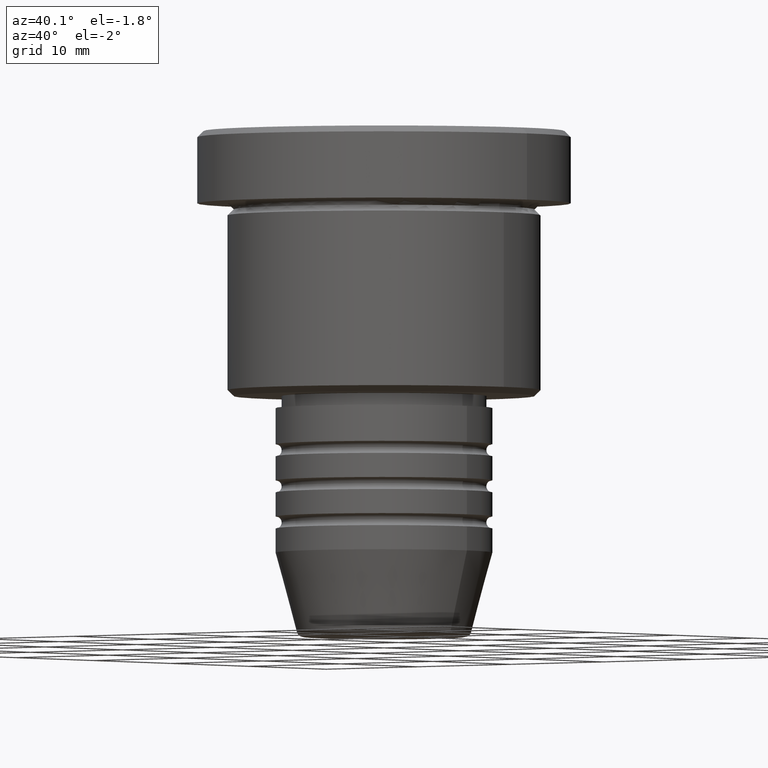
[diagram: clean part render]
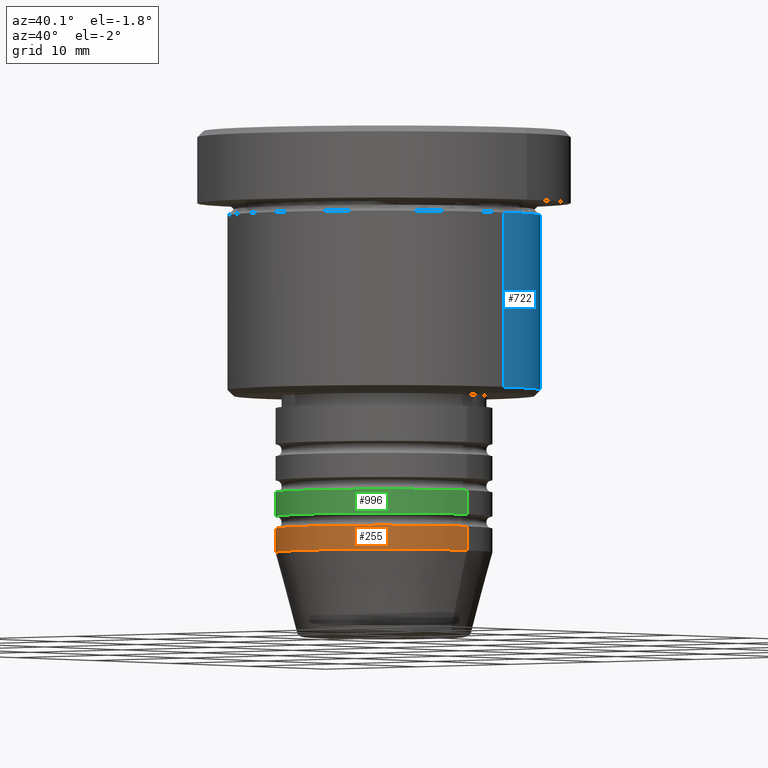
[diagram: same view with three faces highlighted in distinct colors, each labeled with its STEP entity id]
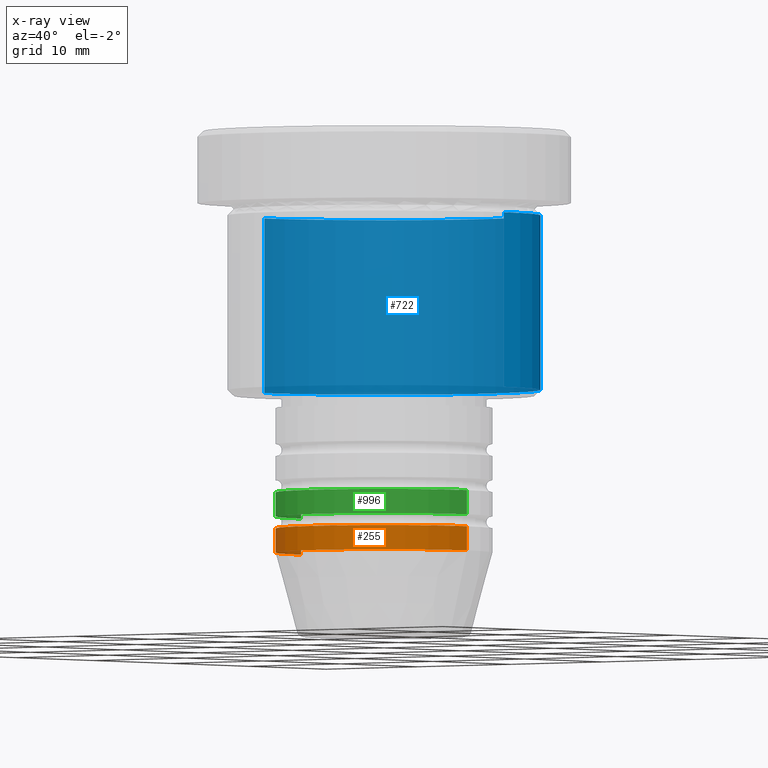
[diagram: x-ray of the same camera — body ghosted, the three highlighted faces saturated]
A machine part, auxiliary view with three faces highlighted in distinct colors.
The next image is the same camera in x-ray (body ghosted, the three faces saturated) — at least one of them is partly hidden behind the body in this view.
Their STEP definitions:

[orange] entity #255 — the highlighted cylindrical surface (partial cylindrical patch) has radius 9 mm, axis along (-0, -0, 1).
#20 = VERTEX_POINT ( 'NONE', #219 ) ;
#52 = DIRECTION ( 'NONE',  ( 1.000000000000000000, 0.000000000000000000, 0.000000000000000000 ) ) ;
#56 = DIRECTION ( 'NONE',  ( -0.000000000000000000, -0.000000000000000000, 1.000000000000000000 ) ) ;
#121 = EDGE_CURVE ( 'NONE', #20, #446, #856, .T. ) ;
#127 = DIRECTION ( 'NONE',  ( -0.000000000000000000, -0.000000000000000000, 1.000000000000000000 ) ) ;
#145 = CARTESIAN_POINT ( 'NONE',  ( 0.000000000000000000, 0.000000000000000000, -34.99999999999999289 ) ) ;
#181 = CARTESIAN_POINT ( 'NONE',  ( 0.000000000000000000, 0.000000000000000000, 0.000000000000000000 ) ) ;
#219 = CARTESIAN_POINT ( 'NONE',  ( -9.000000000000000000, 1.102182119232617714E-15, -34.99999999999999289 ) ) ;
#253 = VERTEX_POINT ( 'NONE', #985 ) ;
#255 = ADVANCED_FACE ( 'NONE', ( #445 ), #268, .T. ) ;
#268 = CYLINDRICAL_SURFACE ( 'NONE', #532, 9.000000000000000000 ) ;
#287 = EDGE_LOOP ( 'NONE', ( #735, #1131, #739, #521 ) ) ;
#358 = CIRCLE ( 'NONE', #763, 9.000000000000000000 ) ;
#412 = EDGE_CURVE ( 'NONE', #446, #253, #557, .T. ) ;
#445 = FACE_OUTER_BOUND ( 'NONE', #287, .T. ) ;
#446 = VERTEX_POINT ( 'NONE', #1031 ) ;
#521 = ORIENTED_EDGE ( 'NONE', *, *, #565, .F. ) ;
#532 = AXIS2_PLACEMENT_3D ( 'NONE', #181, #548, #989 ) ;
#548 = DIRECTION ( 'NONE',  ( -0.000000000000000000, -0.000000000000000000, 1.000000000000000000 ) ) ;
#557 = LINE ( 'NONE', #1123, #1171 ) ;
#565 = EDGE_CURVE ( 'NONE', #906, #253, #358, .T. ) ;
#568 = VECTOR ( 'NONE', #951, 1000.000000000000000 ) ;
#673 = CARTESIAN_POINT ( 'NONE',  ( -9.000000000000000000, 1.102182119232617714E-15, -32.99999999999999289 ) ) ;
#735 = ORIENTED_EDGE ( 'NONE', *, *, #1044, .F. ) ;
#739 = ORIENTED_EDGE ( 'NONE', *, *, #412, .T. ) ;
#763 = AXIS2_PLACEMENT_3D ( 'NONE', #969, #56, #1042 ) ;
#856 = CIRCLE ( 'NONE', #1014, 9.000000000000000000 ) ;
#871 = LINE ( 'NONE', #1051, #568 ) ;
#873 = DIRECTION ( 'NONE',  ( -0.000000000000000000, -0.000000000000000000, 1.000000000000000000 ) ) ;
#906 = VERTEX_POINT ( 'NONE', #673 ) ;
#951 = DIRECTION ( 'NONE',  ( -0.000000000000000000, -0.000000000000000000, 1.000000000000000000 ) ) ;
#969 = CARTESIAN_POINT ( 'NONE',  ( 0.000000000000000000, 0.000000000000000000, -32.99999999999999289 ) ) ;
#985 = CARTESIAN_POINT ( 'NONE',  ( 9.000000000000000000, 0.000000000000000000, -32.99999999999999289 ) ) ;
#989 = DIRECTION ( 'NONE',  ( 1.000000000000000000, 0.000000000000000000, 0.000000000000000000 ) ) ;
#1014 = AXIS2_PLACEMENT_3D ( 'NONE', #145, #873, #52 ) ;
#1031 = CARTESIAN_POINT ( 'NONE',  ( 9.000000000000000000, 0.000000000000000000, -34.99999999999999289 ) ) ;
#1042 = DIRECTION ( 'NONE',  ( 1.000000000000000000, 0.000000000000000000, 0.000000000000000000 ) ) ;
#1044 = EDGE_CURVE ( 'NONE', #20, #906, #871, .T. ) ;
#1051 = CARTESIAN_POINT ( 'NONE',  ( -9.000000000000000000, 1.102182119232617714E-15, 0.000000000000000000 ) ) ;
#1123 = CARTESIAN_POINT ( 'NONE',  ( 9.000000000000000000, 0.000000000000000000, 0.000000000000000000 ) ) ;
#1131 = ORIENTED_EDGE ( 'NONE', *, *, #121, .T. ) ;
#1171 = VECTOR ( 'NONE', #127, 1000.000000000000000 ) ;

[blue] entity #722 — the highlighted cylindrical surface (partial cylindrical patch) has radius 13 mm, axis along (-0, -0, 1).
#5 = EDGE_CURVE ( 'NONE', #111, #421, #648, .T. ) ;
#36 = DIRECTION ( 'NONE',  ( -0.000000000000000000, -0.000000000000000000, 1.000000000000000000 ) ) ;
#40 = DIRECTION ( 'NONE',  ( -0.000000000000000000, -0.000000000000000000, 1.000000000000000000 ) ) ;
#57 = CARTESIAN_POINT ( 'NONE',  ( -13.00000000000000000, 1.592040838891559095E-15, 0.000000000000000000 ) ) ;
#97 = CYLINDRICAL_SURFACE ( 'NONE', #191, 13.00000000000000000 ) ;
#104 = EDGE_CURVE ( 'NONE', #421, #1003, #597, .T. ) ;
#111 = VERTEX_POINT ( 'NONE', #614 ) ;
#114 = DIRECTION ( 'NONE',  ( -0.000000000000000000, -0.000000000000000000, 1.000000000000000000 ) ) ;
#122 = DIRECTION ( 'NONE',  ( 1.000000000000000000, 0.000000000000000000, 0.000000000000000000 ) ) ;
#138 = CARTESIAN_POINT ( 'NONE',  ( -13.00000000000000000, 1.592040838891559095E-15, -6.999999999999995559 ) ) ;
#156 = CIRCLE ( 'NONE', #973, 13.00000000000000000 ) ;
#191 = AXIS2_PLACEMENT_3D ( 'NONE', #1177, #537, #1172 ) ;
#227 = VECTOR ( 'NONE', #40, 1000.000000000000000 ) ;
#299 = CARTESIAN_POINT ( 'NONE',  ( -13.00000000000000000, 1.592040838891559095E-15, -21.50000000000000000 ) ) ;
#347 = ORIENTED_EDGE ( 'NONE', *, *, #5, .T. ) ;
#421 = VERTEX_POINT ( 'NONE', #299 ) ;
#433 = EDGE_CURVE ( 'NONE', #111, #624, #1135, .T. ) ;
#537 = DIRECTION ( 'NONE',  ( -0.000000000000000000, -0.000000000000000000, 1.000000000000000000 ) ) ;
#546 = ORIENTED_EDGE ( 'NONE', *, *, #931, .F. ) ;
#574 = DIRECTION ( 'NONE',  ( -1.000000000000000000, 0.000000000000000000, 0.000000000000000000 ) ) ;
#597 = LINE ( 'NONE', #57, #628 ) ;
#601 = DIRECTION ( 'NONE',  ( -0.000000000000000000, -0.000000000000000000, 1.000000000000000000 ) ) ;
#614 = CARTESIAN_POINT ( 'NONE',  ( 13.00000000000000000, 0.000000000000000000, -21.50000000000000000 ) ) ;
#624 = VERTEX_POINT ( 'NONE', #1140 ) ;
#628 = VECTOR ( 'NONE', #601, 1000.000000000000000 ) ;
#636 = ORIENTED_EDGE ( 'NONE', *, *, #433, .F. ) ;
#648 = CIRCLE ( 'NONE', #914, 13.00000000000000000 ) ;
#722 = ADVANCED_FACE ( 'NONE', ( #800 ), #97, .T. ) ;
#800 = FACE_OUTER_BOUND ( 'NONE', #1050, .T. ) ;
#914 = AXIS2_PLACEMENT_3D ( 'NONE', #1038, #36, #574 ) ;
#931 = EDGE_CURVE ( 'NONE', #624, #1003, #156, .T. ) ;
#973 = AXIS2_PLACEMENT_3D ( 'NONE', #1122, #114, #122 ) ;
#1003 = VERTEX_POINT ( 'NONE', #138 ) ;
#1007 = ORIENTED_EDGE ( 'NONE', *, *, #104, .T. ) ;
#1038 = CARTESIAN_POINT ( 'NONE',  ( 0.000000000000000000, 0.000000000000000000, -21.50000000000000000 ) ) ;
#1050 = EDGE_LOOP ( 'NONE', ( #347, #1007, #546, #636 ) ) ;
#1112 = CARTESIAN_POINT ( 'NONE',  ( 13.00000000000000000, 0.000000000000000000, 0.000000000000000000 ) ) ;
#1122 = CARTESIAN_POINT ( 'NONE',  ( 0.000000000000000000, 0.000000000000000000, -6.999999999999995559 ) ) ;
#1135 = LINE ( 'NONE', #1112, #227 ) ;
#1140 = CARTESIAN_POINT ( 'NONE',  ( 13.00000000000000000, 0.000000000000000000, -6.999999999999995559 ) ) ;
#1172 = DIRECTION ( 'NONE',  ( 1.000000000000000000, 0.000000000000000000, 0.000000000000000000 ) ) ;
#1177 = CARTESIAN_POINT ( 'NONE',  ( 0.000000000000000000, 0.000000000000000000, 0.000000000000000000 ) ) ;

[green] entity #996 — the highlighted cylindrical surface (partial cylindrical patch) has radius 9 mm, axis along (-0, -0, 1).
#63 = CARTESIAN_POINT ( 'NONE',  ( -9.000000000000000000, 1.102182119232617714E-15, -29.99999999999998224 ) ) ;
#69 = ORIENTED_EDGE ( 'NONE', *, *, #312, .F. ) ;
#79 = CIRCLE ( 'NONE', #378, 9.000000000000000000 ) ;
#82 = DIRECTION ( 'NONE',  ( -0.000000000000000000, -0.000000000000000000, 1.000000000000000000 ) ) ;
#163 = VERTEX_POINT ( 'NONE', #331 ) ;
#190 = CARTESIAN_POINT ( 'NONE',  ( 0.000000000000000000, 0.000000000000000000, -31.99999999999997868 ) ) ;
#228 = VERTEX_POINT ( 'NONE', #813 ) ;
#235 = EDGE_CURVE ( 'NONE', #483, #163, #1006, .T. ) ;
#238 = CARTESIAN_POINT ( 'NONE',  ( 0.000000000000000000, 0.000000000000000000, 0.000000000000000000 ) ) ;
#300 = VECTOR ( 'NONE', #859, 1000.000000000000000 ) ;
#312 = EDGE_CURVE ( 'NONE', #1061, #163, #79, .T. ) ;
#315 = AXIS2_PLACEMENT_3D ( 'NONE', #238, #423, #1057 ) ;
#331 = CARTESIAN_POINT ( 'NONE',  ( 9.000000000000000000, 0.000000000000000000, -29.99999999999998224 ) ) ;
#354 = AXIS2_PLACEMENT_3D ( 'NONE', #190, #1109, #1125 ) ;
#378 = AXIS2_PLACEMENT_3D ( 'NONE', #737, #82, #1105 ) ;
#395 = CYLINDRICAL_SURFACE ( 'NONE', #315, 9.000000000000000000 ) ;
#423 = DIRECTION ( 'NONE',  ( -0.000000000000000000, -0.000000000000000000, 1.000000000000000000 ) ) ;
#483 = VERTEX_POINT ( 'NONE', #1037 ) ;
#581 = CARTESIAN_POINT ( 'NONE',  ( -9.000000000000000000, 1.102182119232617714E-15, 0.000000000000000000 ) ) ;
#602 = ORIENTED_EDGE ( 'NONE', *, *, #987, .F. ) ;
#603 = FACE_OUTER_BOUND ( 'NONE', #1167, .T. ) ;
#630 = CIRCLE ( 'NONE', #354, 9.000000000000000000 ) ;
#640 = CARTESIAN_POINT ( 'NONE',  ( 9.000000000000000000, 0.000000000000000000, 0.000000000000000000 ) ) ;
#680 = LINE ( 'NONE', #581, #300 ) ;
#687 = VECTOR ( 'NONE', #1183, 1000.000000000000000 ) ;
#737 = CARTESIAN_POINT ( 'NONE',  ( 0.000000000000000000, 0.000000000000000000, -29.99999999999998224 ) ) ;
#809 = EDGE_CURVE ( 'NONE', #228, #483, #630, .T. ) ;
#813 = CARTESIAN_POINT ( 'NONE',  ( -9.000000000000000000, 1.102182119232617714E-15, -31.99999999999997868 ) ) ;
#859 = DIRECTION ( 'NONE',  ( -0.000000000000000000, -0.000000000000000000, 1.000000000000000000 ) ) ;
#909 = ORIENTED_EDGE ( 'NONE', *, *, #809, .T. ) ;
#932 = ORIENTED_EDGE ( 'NONE', *, *, #235, .T. ) ;
#987 = EDGE_CURVE ( 'NONE', #228, #1061, #680, .T. ) ;
#996 = ADVANCED_FACE ( 'NONE', ( #603 ), #395, .T. ) ;
#1006 = LINE ( 'NONE', #640, #687 ) ;
#1037 = CARTESIAN_POINT ( 'NONE',  ( 9.000000000000000000, 0.000000000000000000, -31.99999999999997868 ) ) ;
#1057 = DIRECTION ( 'NONE',  ( 1.000000000000000000, 0.000000000000000000, 0.000000000000000000 ) ) ;
#1061 = VERTEX_POINT ( 'NONE', #63 ) ;
#1105 = DIRECTION ( 'NONE',  ( 1.000000000000000000, 0.000000000000000000, 0.000000000000000000 ) ) ;
#1109 = DIRECTION ( 'NONE',  ( -0.000000000000000000, -0.000000000000000000, 1.000000000000000000 ) ) ;
#1125 = DIRECTION ( 'NONE',  ( 1.000000000000000000, 0.000000000000000000, 0.000000000000000000 ) ) ;
#1167 = EDGE_LOOP ( 'NONE', ( #602, #909, #932, #69 ) ) ;
#1183 = DIRECTION ( 'NONE',  ( -0.000000000000000000, -0.000000000000000000, 1.000000000000000000 ) ) ;